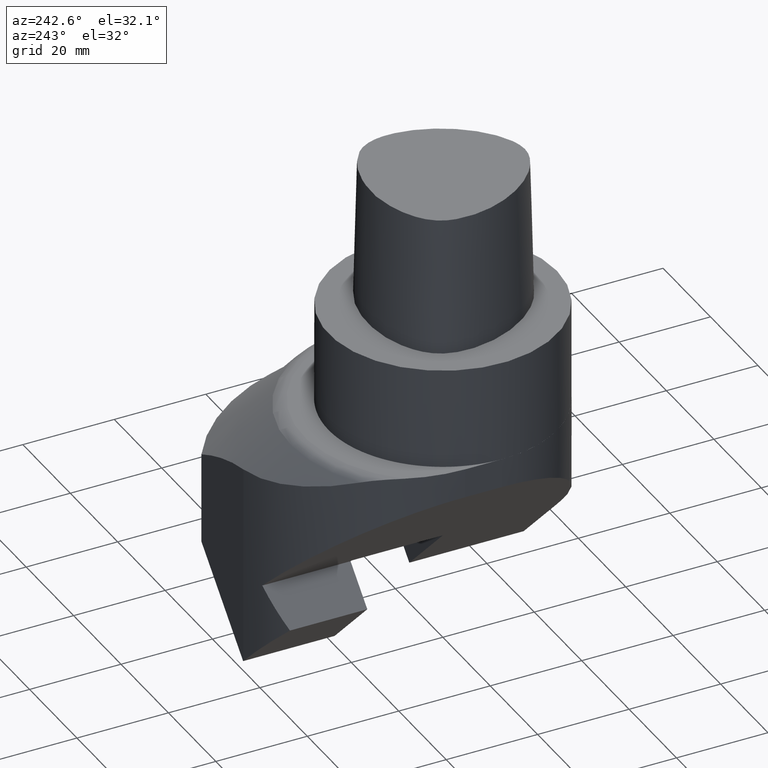
[diagram: clean part render]
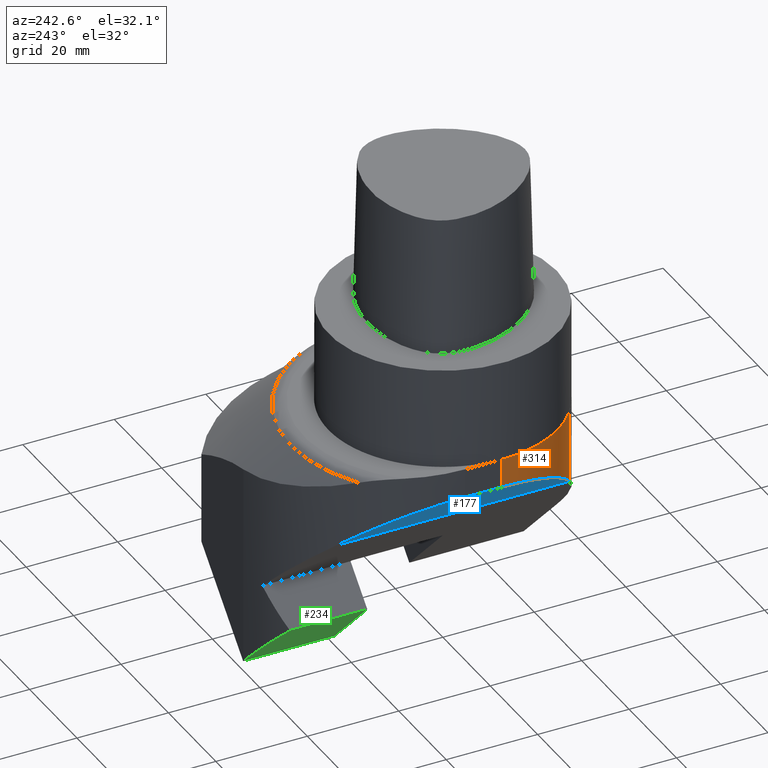
[diagram: same view with three faces highlighted in distinct colors, each labeled with its STEP entity id]
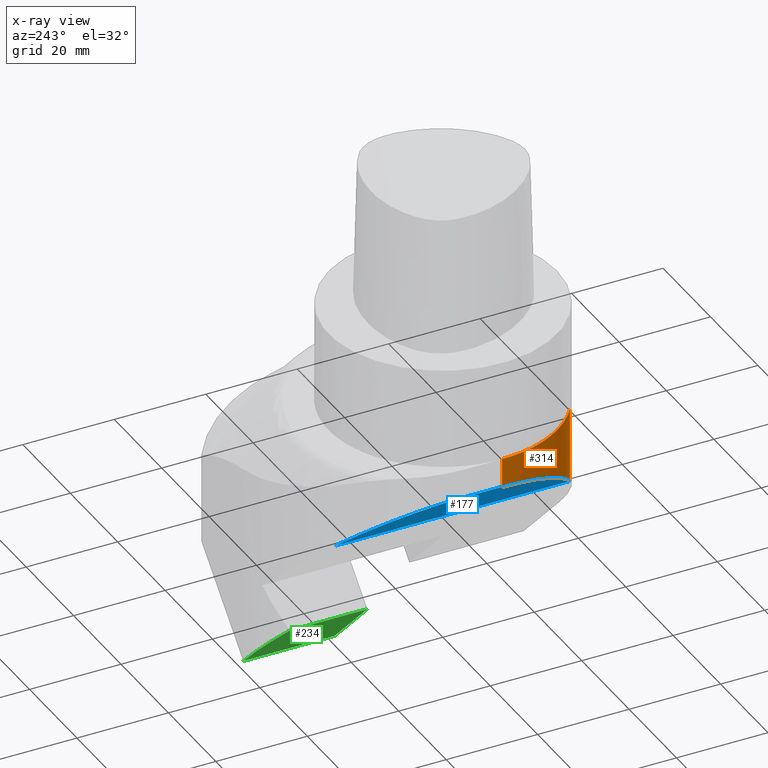
[diagram: x-ray of the same camera — body ghosted, the three highlighted faces saturated]
A machine part, auxiliary view with three faces highlighted in distinct colors.
The next image is the same camera in x-ray (body ghosted, the three faces saturated) — at least one of them is partly hidden behind the body in this view.
Their STEP definitions:

[orange] entity #314 — the highlighted cylindrical surface (partial cylindrical patch) has radius 25 mm, axis along (0, -0, 1).
#133=EDGE_CURVE('240[2]',#386,#387,#388,.T.);
#162=EDGE_CURVE('240[2]',#417,#387,#434,.T.);
#263=EDGE_CURVE('240[2]',#569,#417,#570,.T.);
#307=EDGE_CURVE('240[2]',#569,#386,#621,.T.);
#314=ADVANCED_FACE('240[2]',(#628),#629,.T.);
#386=VERTEX_POINT('',#742);
#387=VERTEX_POINT('',#743);
#388=CIRCLE('',#744,25.0);
#417=VERTEX_POINT('',#1169);
#434=LINE('',#1191,#1192);
#569=VERTEX_POINT('',#1513);
#570=ELLIPSE('',#1514,35.3553390593274,25.0);
#621=LINE('',#1606,#1607);
#628=FACE_OUTER_BOUND('',#1617,.T.);
#629=CYLINDRICAL_SURFACE('',#1618,25.0);
#742=CARTESIAN_POINT('',(-25.0000000000001,4.06863801801481E-014,-21.999999989082));
#743=CARTESIAN_POINT('',(-14.999999999999,-20.0000000000007,-21.999999989082));
#744=AXIS2_PLACEMENT_3D('',#1796,#1797,#1798);
#1169=CARTESIAN_POINT('',(-14.9999992498913,-20.0000005625815,-38.3725840904279));
#1191=CARTESIAN_POINT('',(-14.999999999999,-20.0000000000006,-75.9999999890822));
#1192=VECTOR('',#1841,10.0);
#1513=CARTESIAN_POINT('',(-24.9999999999998,5.58762311132406E-014,-28.3725833403194));
#1514=AXIS2_PLACEMENT_3D('',#1998,#1999,#2000);
#1606=CARTESIAN_POINT('',(-25.0000000000001,1.43459471801429E-013,-75.9999999890822));
#1607=VECTOR('',#2064,10.0);
#1617=EDGE_LOOP('',(#2072,#2073,#2074,#2075));
#1618=AXIS2_PLACEMENT_3D('',#2076,#2077,#2078);
#1796=CARTESIAN_POINT('',(-5.81905303392016E-014,4.06862790668356E-014,-21.999999989082));
#1797=DIRECTION('',(6.12323399573655E-017,-1.88762329879902E-015,1.0));
#1798=DIRECTION('',(-0.599999999999959,-0.800000000000031,-1.47335923506486E-015));
#1841=DIRECTION('',(6.12323399573674E-017,-1.90320540039409E-015,1.0));
#1998=CARTESIAN_POINT('',(-6.01115470283054E-014,1.00394749125224E-013,-53.3725833403192));
#1999=DIRECTION('',(0.707106781186548,-2.28478523594644E-031,0.707106781186547));
#2000=DIRECTION('',(-0.707106781186547,-2.59017151603634E-015,0.707106781186548));
#2064=DIRECTION('',(6.12323399573674E-017,-1.90320540039409E-015,1.0));
#2072=ORIENTED_EDGE('',*,*,#263,.T.);
#2073=ORIENTED_EDGE('',*,*,#162,.T.);
#2074=ORIENTED_EDGE('',*,*,#133,.F.);
#2075=ORIENTED_EDGE('',*,*,#307,.F.);
#2076=CARTESIAN_POINT('',(-6.14970766968994E-014,1.43459370688117E-013,-75.9999999890822));
#2077=DIRECTION('',(6.12323399573694E-017,-1.90320540039409E-015,1.0));
#2078=DIRECTION('',(-0.599999999999959,-0.800000000000031,-1.48582491634091E-015));

[blue] entity #177 — the highlighted planar face has unit normal (0.7071, -0, 0.7071).
#123=EDGE_CURVE('240[2]',#366,#367,#368,.T.);
#177=ADVANCED_FACE('240[2]',(#456),#457,.F.);
#263=EDGE_CURVE('240[2]',#569,#417,#570,.T.);
#297=EDGE_CURVE('240[2]',#366,#417,#611,.T.);
#330=EDGE_CURVE('240[2]',#367,#569,#647,.T.);
#366=VERTEX_POINT('',#678);
#367=VERTEX_POINT('',#679);
#368=ELLIPSE('',#680,45.2548339959391,32.0);
#417=VERTEX_POINT('',#1169);
#456=FACE_OUTER_BOUND('',#1230,.T.);
#457=PLANE('',#1231);
#569=VERTEX_POINT('',#1513);
#570=ELLIPSE('',#1514,35.3553390593274,25.0);
#611=LINE('',#1576,#1577);
#647=LINE('',#1659,#1660);
#678=CARTESIAN_POINT('',(-14.9999992498913,31.2379007873945,-38.3725840904279));
#679=CARTESIAN_POINT('',(-24.9999999999998,8.00000000000006,-28.3725833403194));
#680=AXIS2_PLACEMENT_3D('',#1788,#1789,#1790);
#1169=CARTESIAN_POINT('',(-14.9999992498913,-20.0000005625815,-38.3725840904279));
#1230=EDGE_LOOP('',(#1868,#1869,#1870,#1871));
#1231=AXIS2_PLACEMENT_3D('',#1872,#1873,#1874);
#1513=CARTESIAN_POINT('',(-24.9999999999998,5.58762311132406E-014,-28.3725833403194));
#1514=AXIS2_PLACEMENT_3D('',#1998,#1999,#2000);
#1576=CARTESIAN_POINT('',(-14.9999992498913,-1.35204589857995E-014,-38.3725840904279));
#1577=VECTOR('',#2056,10.0);
#1659=CARTESIAN_POINT('',(-25.0000000000001,6.91104914663523E-014,-28.3725833403191));
#1660=VECTOR('',#2097,10.0);
#1788=CARTESIAN_POINT('',(6.99999999999994,8.00000000000011,-60.3725833403192));
#1789=DIRECTION('',(0.707106781186548,-2.78904447747368E-031,0.707106781186547));
#1790=DIRECTION('',(-0.707106781186547,-2.72166675945111E-015,0.707106781186548));
#1868=ORIENTED_EDGE('',*,*,#123,.F.);
#1869=ORIENTED_EDGE('',*,*,#297,.T.);
#1870=ORIENTED_EDGE('',*,*,#263,.F.);
#1871=ORIENTED_EDGE('',*,*,#330,.F.);
#1872=CARTESIAN_POINT('',(-24.9999999999998,-1.10711652037812E-014,-28.3725833403194));
#1873=DIRECTION('',(0.707106781186548,-3.15544362088405E-032,0.707106781186547));
#1874=DIRECTION('',(0.0,-1.0,-4.46247116395789E-032));
#1998=CARTESIAN_POINT('',(-6.01115470283054E-014,1.00394749125224E-013,-53.3725833403192));
#1999=DIRECTION('',(0.707106781186548,-2.28478523594644E-031,0.707106781186547));
#2000=DIRECTION('',(-0.707106781186547,-2.59017151603634E-015,0.707106781186548));
#2056=DIRECTION('',(-1.22464679914735E-016,-1.0,1.22464679914735E-016));
#2097=DIRECTION('',(-1.22464679914735E-016,-1.0,1.22464679914735E-016));

[green] entity #234 — the highlighted planar face has unit normal (0.7071, -0, 0.7071).
#188=EDGE_CURVE('240[2]',#472,#473,#474,.F.);
#192=EDGE_CURVE('240[2]',#478,#395,#479,.F.);
#221=EDGE_CURVE('240[2]',#374,#478,#516,.F.);
#234=ADVANCED_FACE('240[2]',(#532),#533,.F.);
#238=EDGE_CURVE('240[2]',#374,#473,#537,.T.);
#253=EDGE_CURVE('240[2]',#395,#472,#555,.T.);
#374=VERTEX_POINT('',#725);
#395=VERTEX_POINT('',#753);
#472=VERTEX_POINT('',#1262);
#473=VERTEX_POINT('',#1263);
#474=LINE('',#1264,#1265);
#478=VERTEX_POINT('',#1287);
#479=LINE('',#1288,#1289);
#516=LINE('',#1409,#1410);
#532=FACE_OUTER_BOUND('',#1432,.T.);
#533=PLANE('',#1433);
#537=ELLIPSE('',#1440,45.2548339959391,32.0);
#555=LINE('',#1484,#1485);
#725=CARTESIAN_POINT('',(6.99999999999994,40.0000000000001,-74.5147189640501));
#753=CARTESIAN_POINT('',(7.07106781186571,20.0,-74.5857867759159));
#1262=CARTESIAN_POINT('',(-6.7175144189737,20.0,-60.7972045450764));
#1263=CARTESIAN_POINT('',(-6.71751441897371,36.910721163009,-60.7972045450764));
#1264=CARTESIAN_POINT('',(-6.71751441897372,-1.72809948057044E-014,-60.7972045450764));
#1265=VECTOR('',#1887,1.0);
#1287=CARTESIAN_POINT('',(7.07106781186576,40.0000000000001,-74.5857867759159));
#1288=CARTESIAN_POINT('',(7.07106781186576,-2.065822342446E-014,-74.5857867759159));
#1289=VECTOR('',#1888,1.0);
#1409=CARTESIAN_POINT('',(3.18198042803787,40.0000000000001,-70.696699392088));
#1410=VECTOR('',#1926,1.0);
#1432=EDGE_LOOP('',(#1953,#1954,#1955,#1956,#1957));
#1433=AXIS2_PLACEMENT_3D('',#1958,#1959,#1960);
#1440=AXIS2_PLACEMENT_3D('',#1962,#1963,#1964);
#1484=CARTESIAN_POINT('',(-5.12652416360221,20.0,-62.3881948004479));
#1485=VECTOR('',#1980,10.0);
#1887=DIRECTION('',(-1.22464679914736E-016,-1.0,1.22464679914736E-016));
#1888=DIRECTION('',(1.22464679914736E-016,1.0,-1.22464679914736E-016));
#1926=DIRECTION('',(-0.707106781186547,-1.34576944460952E-015,0.707106781186548));
#1953=ORIENTED_EDGE('',*,*,#221,.T.);
#1954=ORIENTED_EDGE('',*,*,#192,.T.);
#1955=ORIENTED_EDGE('',*,*,#253,.T.);
#1956=ORIENTED_EDGE('',*,*,#188,.T.);
#1957=ORIENTED_EDGE('',*,*,#238,.F.);
#1958=CARTESIAN_POINT('',(-3.18198051533924,-1.8146950861377E-014,-64.3327384487109));
#1959=DIRECTION('',(0.707106781186548,-6.31088724176809E-032,0.707106781186547));
#1960=DIRECTION('',(0.0,-1.0,-8.92494232791577E-032));
#1962=CARTESIAN_POINT('',(6.99999999999994,8.00000000000014,-74.5147189640501));
#1963=DIRECTION('',(0.707106781186548,-2.78904447747368E-031,0.707106781186547));
#1964=DIRECTION('',(-0.707106781186547,-2.72166675945111E-015,0.707106781186548));
#1980=DIRECTION('',(-0.707106781186547,3.9523581617213E-016,0.707106781186548));